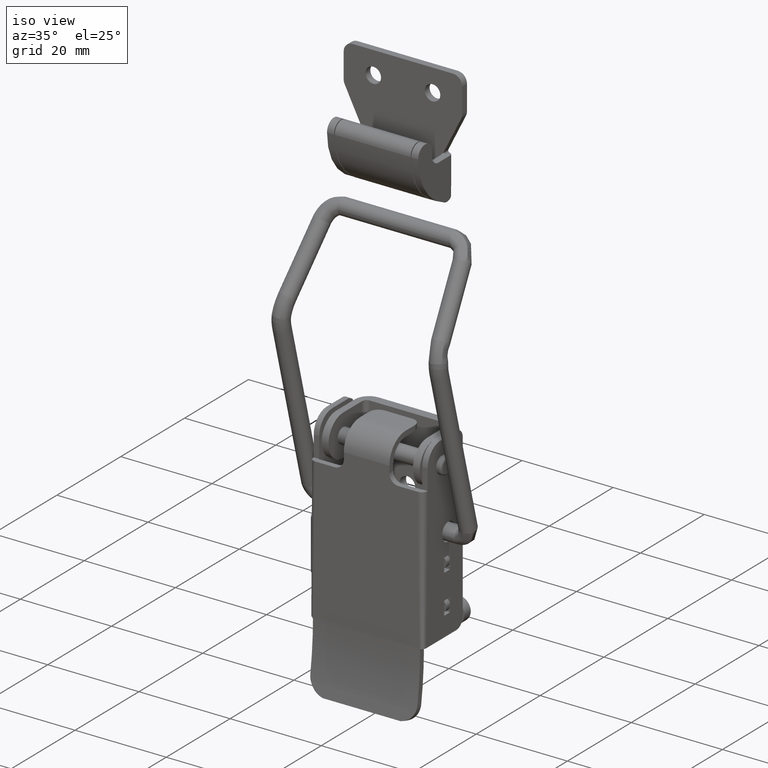
[diagram: clean part render]
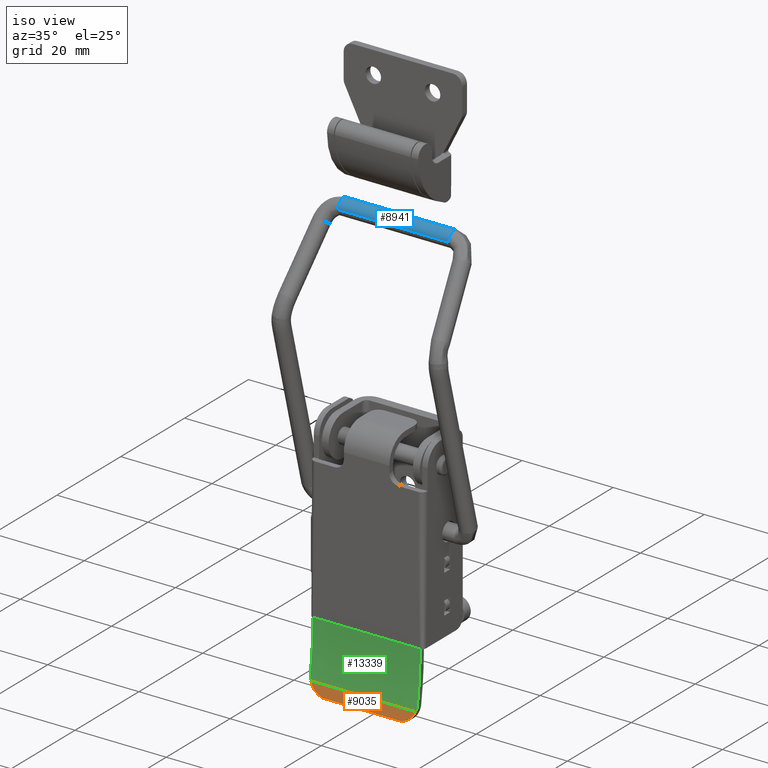
[diagram: same view with three faces highlighted in distinct colors, each labeled with its STEP entity id]
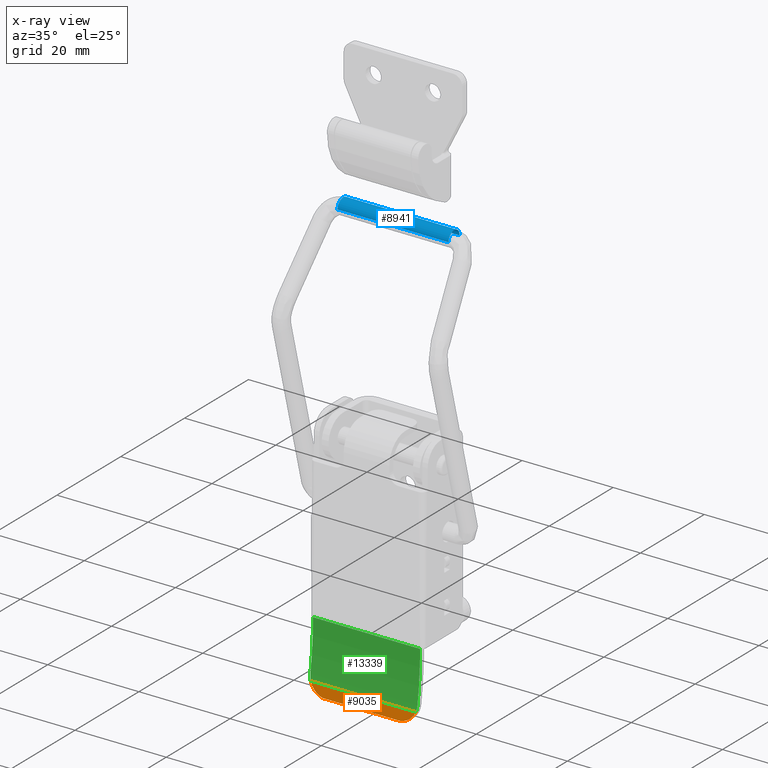
[diagram: x-ray of the same camera — body ghosted, the three highlighted faces saturated]
A machine part, iso view with three faces highlighted in distinct colors.
The next image is the same camera in x-ray (body ghosted, the three faces saturated) — at least one of them is partly hidden behind the body in this view.
Their STEP definitions:

[orange] entity #9035 — the highlighted cylindrical surface (partial cylindrical patch) has radius 72.094 mm, axis along (1, 0, 0).
#426 = CARTESIAN_POINT ( 'NONE',  ( 9.848151783574815400, -7.212167508109778200, -48.70587606487651300 ) ) ;
#480 = VERTEX_POINT ( 'NONE', #18017 ) ;
#722 = CARTESIAN_POINT ( 'NONE',  ( -10.10946686479694500, -7.170072592249821900, -48.48957756588696800 ) ) ;
#761 = CYLINDRICAL_SURFACE ( 'NONE', #953, 72.09404709616160300 ) ;
#953 = AXIS2_PLACEMENT_3D ( 'NONE', #7340, #9353, #12167 ) ;
#1278 = LINE ( 'NONE', #11183, #4522 ) ;
#1663 = EDGE_CURVE ( 'NONE', #480, #2442, #2436, .T. ) ;
#1781 = ORIENTED_EDGE ( 'NONE', *, *, #1663, .T. ) ;
#1836 = CARTESIAN_POINT ( 'NONE',  ( 11.30115327729743800, -6.937330558436070000, -47.27123969469605700 ) ) ;
#1897 = CARTESIAN_POINT ( 'NONE',  ( -11.30113297490366800, -6.937340177378915800, -47.27129602719964700 ) ) ;
#2140 = CARTESIAN_POINT ( 'NONE',  ( -9.200864859614029000, -7.265007827871479600, -48.96028667303607300 ) ) ;
#2436 = B_SPLINE_CURVE_WITH_KNOTS ( 'NONE', 3,
 ( #16003, #1897, #9064, #722, #10456, #2140, #11871, #3510 ),
 .UNSPECIFIED., .F., .F.,
 ( 4, 2, 2, 4 ),
 ( 0.0000000000000000000, 0.002051386551322148600, 0.003077079826983223100, 0.004102773102644297200 ),
 .UNSPECIFIED. ) ;
#2442 = VERTEX_POINT ( 'NONE', #14170 ) ;
#3121 = VERTEX_POINT ( 'NONE', #5017 ) ;
#3510 = CARTESIAN_POINT ( 'NONE',  ( -8.538506919060559100, -7.299999999993199900, -49.12941292703430200 ) ) ;
#3531 = ORIENTED_EDGE ( 'NONE', *, *, #5487, .F. ) ;
#3640 = CARTESIAN_POINT ( 'NONE',  ( 11.53085848067416000, -6.828499914032570400, -46.63388301210640200 ) ) ;
#4220 = DIRECTION ( 'NONE',  ( 1.000000000000000000, 0.0000000000000000000, 0.0000000000000000000 ) ) ;
#4522 = VECTOR ( 'NONE', #4220, 1000.000000000000000 ) ;
#5017 = CARTESIAN_POINT ( 'NONE',  ( 8.538506918908570500, -7.299999999993199900, -49.12941292704490300 ) ) ;
#5487 = EDGE_CURVE ( 'NONE', #480, #14212, #1278, .T. ) ;
#5925 = CARTESIAN_POINT ( 'NONE',  ( 9.211859002010751100, -7.273348619650569400, -49.00081391774701700 ) ) ;
#7293 = CARTESIAN_POINT ( 'NONE',  ( 8.538506918908570500, -7.299999999993199900, -49.12941292704490300 ) ) ;
#7340 = CARTESIAN_POINT ( 'NONE',  ( -988.2499999999849900, -77.89397569713789000, -34.49923104248074400 ) ) ;
#9035 = ADVANCED_FACE ( 'NONE', ( #11883 ), #761, .F. ) ;
#9064 = CARTESIAN_POINT ( 'NONE',  ( -10.89514263733942700, -7.043665223472394200, -47.84013395896052900 ) ) ;
#9084 = VECTOR ( 'NONE', #17299, 1000.000000000000000 ) ;
#9184 = ORIENTED_EDGE ( 'NONE', *, *, #14033, .T. ) ;
#9353 = DIRECTION ( 'NONE',  ( 1.000000000000000000, 0.0000000000000000000, 0.0000000000000000000 ) ) ;
#9523 = LINE ( 'NONE', #15891, #9084 ) ;
#9707 = EDGE_LOOP ( 'NONE', ( #3531, #1781, #9184, #15561 ) ) ;
#10165 = CARTESIAN_POINT ( 'NONE',  ( 10.89658819383932600, -7.043380613010207900, -47.83864436870716500 ) ) ;
#10172 = EDGE_CURVE ( 'NONE', #3121, #14212, #10914, .T. ) ;
#10456 = CARTESIAN_POINT ( 'NONE',  ( -9.819240309178651300, -7.206627720853243900, -48.67216540017567900 ) ) ;
#10914 = B_SPLINE_CURVE_WITH_KNOTS ( 'NONE', 3,
 ( #7293, #5925, #426, #10165, #1836, #11577 ),
 .UNSPECIFIED., .F., .F.,
 ( 4, 2, 4 ),
 ( 3.371940570985910100E-016, 0.002051180531874090900, 0.004102361063747844400 ),
 .UNSPECIFIED. ) ;
#11183 = CARTESIAN_POINT ( 'NONE',  ( -988.2499999999849900, -6.828499925177779600, -46.63388301020310700 ) ) ;
#11577 = CARTESIAN_POINT ( 'NONE',  ( 11.53085848067416000, -6.828499914032570400, -46.63388301210640200 ) ) ;
#11871 = CARTESIAN_POINT ( 'NONE',  ( -8.875212739830880400, -7.286673131137980000, -49.06510773502825600 ) ) ;
#11883 = FACE_OUTER_BOUND ( 'NONE', #9707, .T. ) ;
#12167 = DIRECTION ( 'NONE',  ( 0.0000000000000000000, 0.0000000000000000000, -1.000000000000000000 ) ) ;
#14033 = EDGE_CURVE ( 'NONE', #2442, #3121, #9523, .T. ) ;
#14170 = CARTESIAN_POINT ( 'NONE',  ( -8.538506919060559100, -7.299999999993199900, -49.12941292703430200 ) ) ;
#14212 = VERTEX_POINT ( 'NONE', #3640 ) ;
#15561 = ORIENTED_EDGE ( 'NONE', *, *, #10172, .T. ) ;
#15891 = CARTESIAN_POINT ( 'NONE',  ( -988.2499999999849900, -7.299999999999860400, -49.12941292704550000 ) ) ;
#16003 = CARTESIAN_POINT ( 'NONE',  ( -11.53085848067410000, -6.828499914032570400, -46.63388301210640200 ) ) ;
#17299 = DIRECTION ( 'NONE',  ( 1.000000000000000000, 0.0000000000000000000, 0.0000000000000000000 ) ) ;
#18017 = CARTESIAN_POINT ( 'NONE',  ( -11.53085848067410000, -6.828499914032570400, -46.63388301210640200 ) ) ;

[blue] entity #8941 — the highlighted cylindrical surface (edge-blend (fillet) strip) has radius 1.75 mm, axis along (-1, -0, 0).
#153 = EDGE_CURVE ( 'NONE', #12539, #5814, #172, .T. ) ;
#172 = LINE ( 'NONE', #15455, #10397 ) ;
#227 = VERTEX_POINT ( 'NONE', #11784 ) ;
#488 = CARTESIAN_POINT ( 'NONE',  ( -12.16507319339000000, 0.5000000000000001100, 57.27907363815226900 ) ) ;
#601 = EDGE_CURVE ( 'NONE', #12883, #227, #4544, .T. ) ;
#676 = ORIENTED_EDGE ( 'NONE', *, *, #153, .F. ) ;
#975 = CARTESIAN_POINT ( 'NONE',  ( 12.16507319339000000, 4.000000000000000000, 57.04999917382799900 ) ) ;
#1080 = CARTESIAN_POINT ( 'NONE',  ( 12.16507319339000000, 0.6886029186839491800, 57.96347582666491900 ) ) ;
#1204 = B_SPLINE_CURVE_WITH_KNOTS ( 'NONE', 3,
 ( #7990, #17764, #9411, #1080, #10830, #2482 ),
 .UNSPECIFIED., .F., .F.,
 ( 4, 2, 4 ),
 ( 0.0000000000000000000, 0.1250000000000000000, 0.2500000000000000000 ),
 .UNSPECIFIED. ) ;
#1422 = CARTESIAN_POINT ( 'NONE',  ( 12.16507319339000000, 0.5000000000000003300, 57.04999917382799900 ) ) ;
#2371 = CARTESIAN_POINT ( 'NONE',  ( -12.16507319339000000, 2.479074464324260200, 58.79999917382799900 ) ) ;
#2407 = ORIENTED_EDGE ( 'NONE', *, *, #17938, .F. ) ;
#2440 = CARTESIAN_POINT ( 'NONE',  ( 12.16507319339000000, 3.163476652835745200, 58.61139625514520200 ) ) ;
#2460 = ORIENTED_EDGE ( 'NONE', *, *, #12640, .T. ) ;
#2482 = CARTESIAN_POINT ( 'NONE',  ( 12.16507319339000000, 0.5000000000000003300, 57.04999917382799900 ) ) ;
#2962 = DIRECTION ( 'NONE',  ( -1.000000000000000000, -8.844671368030449700E-017, 0.0000000000000000000 ) ) ;
#3748 = CARTESIAN_POINT ( 'NONE',  ( -12.16507319339000200, 2.708058797628745100, 58.75445135799755300 ) ) ;
#3808 = CARTESIAN_POINT ( 'NONE',  ( -12.16507319339000000, 3.999999999999999100, 57.27907363815224800 ) ) ;
#3824 = CARTESIAN_POINT ( 'NONE',  ( 12.16507319339000000, 2.250000000000004400, 58.79999917382799900 ) ) ;
#4544 = B_SPLINE_CURVE_WITH_KNOTS ( 'NONE', 3,
 ( #14970, #3808, #7937, #16301, #6528, #5136, #13509, #3748, #2371, #10707 ),
 .UNSPECIFIED., .F., .F.,
 ( 4, 2, 2, 2, 4 ),
 ( 0.7500000000000000000, 0.8125000000000000000, 0.8750000000000000000, 0.9375000000000000000, 1.000000000000000000 ),
 .UNSPECIFIED. ) ;
#5136 = CARTESIAN_POINT ( 'NONE',  ( -12.16507319338999700, 3.325456759956104200, 58.44941614802479500 ) ) ;
#5446 = CARTESIAN_POINT ( 'NONE',  ( -12.16507319339000000, 4.000000000000000000, 57.04999917382799900 ) ) ;
#5521 = CARTESIAN_POINT ( 'NONE',  ( -1.547817489405328900E-016, 4.000000000000000000, 57.04999917382799900 ) ) ;
#5814 = VERTEX_POINT ( 'NONE', #13294 ) ;
#5927 = CARTESIAN_POINT ( 'NONE',  ( -12.16507319339000000, 2.250000000000003600, 58.79999917382799900 ) ) ;
#5996 = CARTESIAN_POINT ( 'NONE',  ( -12.16507319339000200, 1.368666784350935700, 58.57912535344795700 ) ) ;
#6528 = CARTESIAN_POINT ( 'NONE',  ( -12.16507319339000000, 3.649416974196818300, 58.12545593378410300 ) ) ;
#6799 = VERTEX_POINT ( 'NONE', #6891 ) ;
#6891 = CARTESIAN_POINT ( 'NONE',  ( 12.16507319339000000, 2.250000000000004400, 58.79999917382799900 ) ) ;
#6928 = DIRECTION ( 'NONE',  ( -1.000000000000000000, -8.844671368030449700E-017, 0.0000000000000000000 ) ) ;
#7163 = CARTESIAN_POINT ( 'NONE',  ( 0.0000000000000000000, 2.250000000000000000, 57.04999917382799900 ) ) ;
#7416 = CARTESIAN_POINT ( 'NONE',  ( -12.16507319339000200, 0.8505830258031900100, 58.12545593378410300 ) ) ;
#7695 = VECTOR ( 'NONE', #6928, 1000.000000000000000 ) ;
#7937 = CARTESIAN_POINT ( 'NONE',  ( -12.16507319339000200, 3.954452184169552800, 57.50805797145672900 ) ) ;
#7990 = CARTESIAN_POINT ( 'NONE',  ( 12.16507319339000000, 2.250000000000004400, 58.79999917382799900 ) ) ;
#8560 = DIRECTION ( 'NONE',  ( -1.000000000000000000, -8.844671368030449700E-017, 0.0000000000000000000 ) ) ;
#8763 = CARTESIAN_POINT ( 'NONE',  ( -12.16507319338999900, 2.020925535675754500, 58.79999917382799200 ) ) ;
#8821 = CARTESIAN_POINT ( 'NONE',  ( -12.16507319338999900, 0.5455478158304496400, 57.50805797145675100 ) ) ;
#8941 = ADVANCED_FACE ( 'NONE', ( #9039 ), #12314, .T. ) ;
#9039 = FACE_OUTER_BOUND ( 'NONE', #13390, .T. ) ;
#9411 = CARTESIAN_POINT ( 'NONE',  ( 12.16507319339000000, 1.336523347164257900, 58.61139625514520200 ) ) ;
#9544 = B_SPLINE_CURVE_WITH_KNOTS ( 'NONE', 3,
 ( #975, #17713, #10780, #2440, #12188, #3824 ),
 .UNSPECIFIED., .F., .F.,
 ( 4, 2, 4 ),
 ( 0.7500000000000000000, 0.8750000000000000000, 1.000000000000000000 ),
 .UNSPECIFIED. ) ;
#9817 = ORIENTED_EDGE ( 'NONE', *, *, #601, .T. ) ;
#10036 = EDGE_CURVE ( 'NONE', #16647, #12883, #14498, .T. ) ;
#10227 = CARTESIAN_POINT ( 'NONE',  ( -12.16507319339000000, 0.4999999999999994400, 57.04999917382799900 ) ) ;
#10273 = EDGE_CURVE ( 'NONE', #6799, #12539, #1204, .T. ) ;
#10397 = VECTOR ( 'NONE', #2962, 1000.000000000000000 ) ;
#10707 = CARTESIAN_POINT ( 'NONE',  ( -12.16507319339000000, 2.250000000000003600, 58.79999917382799900 ) ) ;
#10780 = CARTESIAN_POINT ( 'NONE',  ( 12.16507319339000000, 3.811397081316053800, 57.96347582666491900 ) ) ;
#10830 = CARTESIAN_POINT ( 'NONE',  ( 12.16507319339000000, 0.5000000000013034000, 57.50814810247965200 ) ) ;
#11727 = CARTESIAN_POINT ( 'NONE',  ( 12.16507319339000000, 4.000000000000000000, 57.04999917382799900 ) ) ;
#11784 = CARTESIAN_POINT ( 'NONE',  ( -12.16507319339000000, 2.250000000000003600, 58.79999917382799900 ) ) ;
#12188 = CARTESIAN_POINT ( 'NONE',  ( 12.16507319339000000, 2.708148928648515000, 58.79999917382799900 ) ) ;
#12314 = CYLINDRICAL_SURFACE ( 'NONE', #13447, 1.750000000000000000 ) ;
#12539 = VERTEX_POINT ( 'NONE', #1422 ) ;
#12640 = EDGE_CURVE ( 'NONE', #227, #5814, #13704, .T. ) ;
#12883 = VERTEX_POINT ( 'NONE', #5446 ) ;
#13294 = CARTESIAN_POINT ( 'NONE',  ( -12.16507319339000000, 0.4999999999999994400, 57.04999917382799900 ) ) ;
#13390 = EDGE_LOOP ( 'NONE', ( #2407, #15464, #9817, #2460, #676, #15538 ) ) ;
#13447 = AXIS2_PLACEMENT_3D ( 'NONE', #7163, #8560, #15535 ) ;
#13509 = CARTESIAN_POINT ( 'NONE',  ( -12.16507319338999700, 3.131333215649077400, 58.57912535344793500 ) ) ;
#13704 = B_SPLINE_CURVE_WITH_KNOTS ( 'NONE', 3,
 ( #5927, #8763, #14364, #5996, #15766, #7416, #17175, #8821, #488, #10227 ),
 .UNSPECIFIED., .F., .F.,
 ( 4, 2, 2, 2, 4 ),
 ( 0.0000000000000000000, 0.06250000000000000000, 0.1250000000000000000, 0.1875000000000000000, 0.2500000000000000000 ),
 .UNSPECIFIED. ) ;
#14364 = CARTESIAN_POINT ( 'NONE',  ( -12.16507319339000200, 1.791941202371271300, 58.75445135799756000 ) ) ;
#14498 = LINE ( 'NONE', #5521, #7695 ) ;
#14970 = CARTESIAN_POINT ( 'NONE',  ( -12.16507319339000000, 4.000000000000000000, 57.04999917382799900 ) ) ;
#15455 = CARTESIAN_POINT ( 'NONE',  ( 1.547817489405328900E-016, 0.4999999999999997800, 57.04999917382799900 ) ) ;
#15464 = ORIENTED_EDGE ( 'NONE', *, *, #10036, .T. ) ;
#15535 = DIRECTION ( 'NONE',  ( 8.844671368030450900E-017, -1.000000000000000000, 0.0000000000000000000 ) ) ;
#15538 = ORIENTED_EDGE ( 'NONE', *, *, #10273, .F. ) ;
#15766 = CARTESIAN_POINT ( 'NONE',  ( -12.16507319339000000, 1.174543240043906200, 58.44941614802482400 ) ) ;
#16301 = CARTESIAN_POINT ( 'NONE',  ( -12.16507319339000200, 3.779126179619953800, 57.93133238947707800 ) ) ;
#16647 = VERTEX_POINT ( 'NONE', #11727 ) ;
#17175 = CARTESIAN_POINT ( 'NONE',  ( -12.16507319339000000, 0.7208738203800533200, 57.93133238947708500 ) ) ;
#17713 = CARTESIAN_POINT ( 'NONE',  ( 12.16507319339000000, 3.999999999998693900, 57.50814810247965200 ) ) ;
#17764 = CARTESIAN_POINT ( 'NONE',  ( 12.16507319339000000, 1.791851071351490100, 58.79999917382799900 ) ) ;
#17938 = EDGE_CURVE ( 'NONE', #16647, #6799, #9544, .T. ) ;

[green] entity #13339 — the highlighted cylindrical surface (partial cylindrical patch) has radius 72.0899 mm, axis along (1, 0, 0).
#78 = CARTESIAN_POINT ( 'NONE',  ( -11.72497563352321300, -5.799999999999917200, -34.49999999999994300 ) ) ;
#480 = VERTEX_POINT ( 'NONE', #18017 ) ;
#1102 = ORIENTED_EDGE ( 'NONE', *, *, #1694, .T. ) ;
#1166 = CARTESIAN_POINT ( 'NONE',  ( 11.75000000001460000, -6.625713991411429600, -45.37977421517780400 ) ) ;
#1277 = VERTEX_POINT ( 'NONE', #10663 ) ;
#1278 = LINE ( 'NONE', #11183, #4522 ) ;
#1420 = CARTESIAN_POINT ( 'NONE',  ( 11.75000000001460000, -5.799217985566720300, -34.50000000000000000 ) ) ;
#1694 = EDGE_CURVE ( 'NONE', #14212, #8318, #14062, .T. ) ;
#2829 = VECTOR ( 'NONE', #14587, 1000.000000000000000 ) ;
#3099 = CARTESIAN_POINT ( 'NONE',  ( 11.53085848067416000, -6.828499914032570400, -46.63388301210640200 ) ) ;
#3475 = ORIENTED_EDGE ( 'NONE', *, *, #12563, .F. ) ;
#3620 = CARTESIAN_POINT ( 'NONE',  ( -11.75000000002419900, -6.691043473316144100, -45.80769236435938300 ) ) ;
#3623 = DIRECTION ( 'NONE',  ( 1.000000000000000000, 0.0000000000000000000, 0.0000000000000000000 ) ) ;
#3640 = CARTESIAN_POINT ( 'NONE',  ( 11.53085848067416000, -6.828499914032570400, -46.63388301210640200 ) ) ;
#3645 = CYLINDRICAL_SURFACE ( 'NONE', #7363, 72.08990753000159700 ) ;
#4016 = CIRCLE ( 'NONE', #15480, 72.08990753000159700 ) ;
#4220 = DIRECTION ( 'NONE',  ( 1.000000000000000000, 0.0000000000000000000, 0.0000000000000000000 ) ) ;
#4396 = CARTESIAN_POINT ( 'NONE',  ( 11.75000000001460000, -5.799217985566720300, -34.50000000000000000 ) ) ;
#4408 = VERTEX_POINT ( 'NONE', #10064 ) ;
#4488 = CARTESIAN_POINT ( 'NONE',  ( 11.67683579289772700, -6.759338619658173300, -46.22884369031924500 ) ) ;
#4513 = CIRCLE ( 'NONE', #4558, 72.08990753000159700 ) ;
#4522 = VECTOR ( 'NONE', #4220, 1000.000000000000000 ) ;
#4558 = AXIS2_PLACEMENT_3D ( 'NONE', #14717, #6343, #16112 ) ;
#4821 = CARTESIAN_POINT ( 'NONE',  ( -988.2499999999849900, -5.799999999999860400, -34.50000000000000000 ) ) ;
#4954 = DIRECTION ( 'NONE',  ( 0.0000000000000000000, 0.0000000000000000000, -1.000000000000000000 ) ) ;
#4975 = ORIENTED_EDGE ( 'NONE', *, *, #11709, .F. ) ;
#5290 =( BOUNDED_CURVE ( )  B_SPLINE_CURVE ( 2, ( #6989, #78, #9818 ),
 .UNSPECIFIED., .F., .F. ) 
 B_SPLINE_CURVE_WITH_KNOTS ( ( 3, 3 ),
 ( 0.0000000000000000000, 1.000000000000000000 ),
 .UNSPECIFIED. ) 
 CURVE ( )  GEOMETRIC_REPRESENTATION_ITEM ( )  RATIONAL_B_SPLINE_CURVE ( ( 0.9755799807089172700, 0.9872335326484807900, 1.000000000000000000 ) ) 
 REPRESENTATION_ITEM ( '' )  );
#5487 = EDGE_CURVE ( 'NONE', #480, #14212, #1278, .T. ) ;
#5782 = CARTESIAN_POINT ( 'NONE',  ( 11.73333333334836200, -5.799999999999805300, -34.49999999999976600 ) ) ;
#5865 = CARTESIAN_POINT ( 'NONE',  ( 11.75000000001460000, -6.625713991411429600, -45.37977421517780400 ) ) ;
#6343 = DIRECTION ( 'NONE',  ( 1.000000000000000000, 0.0000000000000000000, 0.0000000000000000000 ) ) ;
#6568 = CARTESIAN_POINT ( 'NONE',  ( -11.75000000001458000, -6.625713991376059700, -45.37977421519070000 ) ) ;
#6624 = EDGE_CURVE ( 'NONE', #14720, #480, #9135, .T. ) ;
#6989 = CARTESIAN_POINT ( 'NONE',  ( -11.75000000001460000, -5.799217985566720300, -34.50000000000000000 ) ) ;
#7191 = CARTESIAN_POINT ( 'NONE',  ( 11.70000000001459900, -5.799999999999860400, -34.50000000000000000 ) ) ;
#7363 = AXIS2_PLACEMENT_3D ( 'NONE', #7753, #3623, #4954 ) ;
#7753 = CARTESIAN_POINT ( 'NONE',  ( -988.2499999999849900, -77.88990753000139500, -34.50000000000000000 ) ) ;
#7769 = DIRECTION ( 'NONE',  ( 1.000000000000000000, 0.0000000000000000000, 0.0000000000000000000 ) ) ;
#7802 = CARTESIAN_POINT ( 'NONE',  ( -11.53085848067410000, -6.828499914032570400, -46.63388301210640200 ) ) ;
#7876 = ORIENTED_EDGE ( 'NONE', *, *, #13329, .F. ) ;
#8318 = VERTEX_POINT ( 'NONE', #1166 ) ;
#8831 = ORIENTED_EDGE ( 'NONE', *, *, #5487, .T. ) ;
#9135 = B_SPLINE_CURVE_WITH_KNOTS ( 'NONE', 3,
 ( #13383, #3620, #16168, #7802 ),
 .UNSPECIFIED., .F., .F.,
 ( 4, 4 ),
 ( 9.657089671774907200E-015, 0.001294017567781166900 ),
 .UNSPECIFIED. ) ;
#9818 = CARTESIAN_POINT ( 'NONE',  ( -11.70000000001459900, -5.799999999999860400, -34.50000000000000000 ) ) ;
#10055 = VERTEX_POINT ( 'NONE', #1420 ) ;
#10064 = CARTESIAN_POINT ( 'NONE',  ( 11.70000000001459900, -5.799999999999860400, -34.50000000000000000 ) ) ;
#10663 = CARTESIAN_POINT ( 'NONE',  ( -11.70000000001459900, -5.799999999999860400, -34.50000000000000000 ) ) ;
#11079 = FACE_OUTER_BOUND ( 'NONE', #15768, .T. ) ;
#11183 = CARTESIAN_POINT ( 'NONE',  ( -988.2499999999849900, -6.828499925177779600, -46.63388301020310700 ) ) ;
#11301 = ORIENTED_EDGE ( 'NONE', *, *, #16851, .T. ) ;
#11709 = EDGE_CURVE ( 'NONE', #1277, #4408, #17203, .T. ) ;
#12072 = EDGE_CURVE ( 'NONE', #10055, #4408, #13147, .T. ) ;
#12563 = EDGE_CURVE ( 'NONE', #15149, #1277, #5290, .T. ) ;
#12772 = ORIENTED_EDGE ( 'NONE', *, *, #6624, .T. ) ;
#13147 = B_SPLINE_CURVE_WITH_KNOTS ( 'NONE', 3,
 ( #4396, #5782, #15567, #7191 ),
 .UNSPECIFIED., .F., .F.,
 ( 4, 4 ),
 ( 0.0000000000000000000, 1.000000000000000000 ),
 .UNSPECIFIED. ) ;
#13329 = EDGE_CURVE ( 'NONE', #14720, #15149, #4513, .T. ) ;
#13339 = ADVANCED_FACE ( 'NONE', ( #11079 ), #3645, .F. ) ;
#13383 = CARTESIAN_POINT ( 'NONE',  ( -11.75000000001458000, -6.625713991376059700, -45.37977421519070000 ) ) ;
#14062 = B_SPLINE_CURVE_WITH_KNOTS ( 'NONE', 3,
 ( #3099, #4488, #14241, #5865 ),
 .UNSPECIFIED., .F., .F.,
 ( 4, 4 ),
 ( 4.349590185292895400E-014, 0.001289160195760667800 ),
 .UNSPECIFIED. ) ;
#14212 = VERTEX_POINT ( 'NONE', #3640 ) ;
#14241 = CARTESIAN_POINT ( 'NONE',  ( 11.75000000002143700, -6.691527493729620500, -45.81086277228272500 ) ) ;
#14587 = DIRECTION ( 'NONE',  ( 1.000000000000000000, 0.0000000000000000000, 0.0000000000000000000 ) ) ;
#14717 = CARTESIAN_POINT ( 'NONE',  ( -11.75000000001458000, -77.88990753000139500, -34.50000000000000000 ) ) ;
#14720 = VERTEX_POINT ( 'NONE', #6568 ) ;
#15149 = VERTEX_POINT ( 'NONE', #17250 ) ;
#15480 = AXIS2_PLACEMENT_3D ( 'NONE', #16132, #7769, #17537 ) ;
#15567 = CARTESIAN_POINT ( 'NONE',  ( 11.71666666668169700, -5.799999999999805300, -34.49999999999976600 ) ) ;
#15768 = EDGE_LOOP ( 'NONE', ( #7876, #12772, #8831, #1102, #11301, #17863, #4975, #3475 ) ) ;
#16112 = DIRECTION ( 'NONE',  ( 0.0000000000000000000, 0.0000000000000000000, -1.000000000000000000 ) ) ;
#16132 = CARTESIAN_POINT ( 'NONE',  ( 11.75000000001458000, -77.88990753000139500, -34.50000000000000000 ) ) ;
#16168 = CARTESIAN_POINT ( 'NONE',  ( -11.67576768504848600, -6.759844669069541300, -46.23180734042703900 ) ) ;
#16851 = EDGE_CURVE ( 'NONE', #8318, #10055, #4016, .T. ) ;
#17203 = LINE ( 'NONE', #4821, #2829 ) ;
#17250 = CARTESIAN_POINT ( 'NONE',  ( -11.75000000001460000, -5.799217985566720300, -34.50000000000000000 ) ) ;
#17537 = DIRECTION ( 'NONE',  ( 0.0000000000000000000, 0.0000000000000000000, -1.000000000000000000 ) ) ;
#17863 = ORIENTED_EDGE ( 'NONE', *, *, #12072, .T. ) ;
#18017 = CARTESIAN_POINT ( 'NONE',  ( -11.53085848067410000, -6.828499914032570400, -46.63388301210640200 ) ) ;